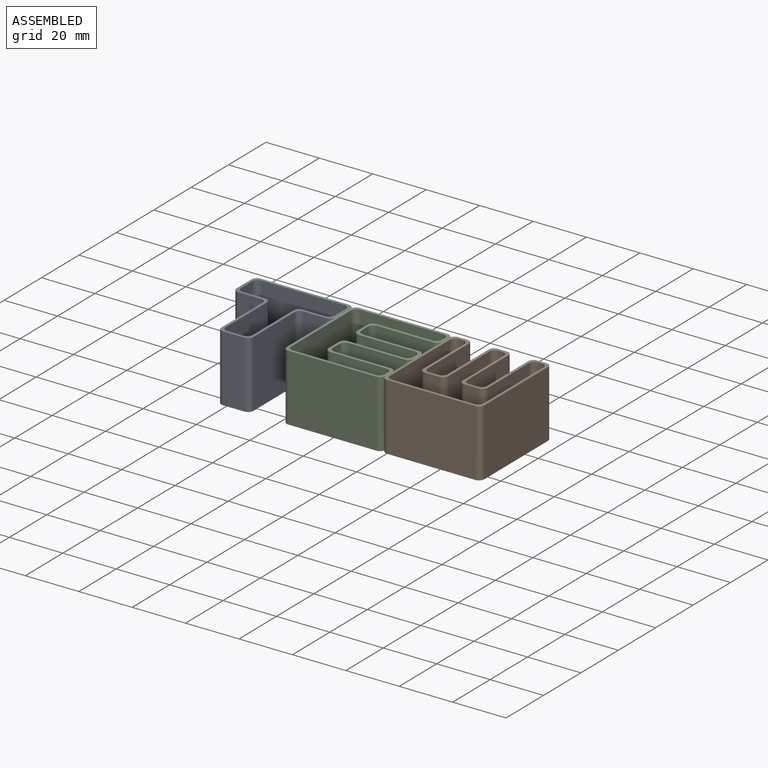
[diagram: assembled view]
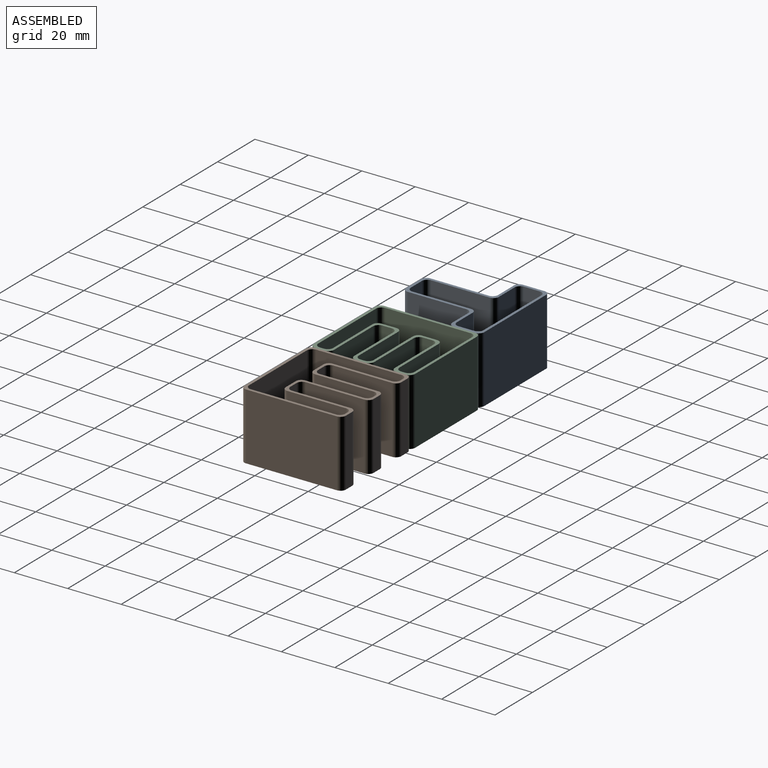
[diagram: assembled view, second angle]
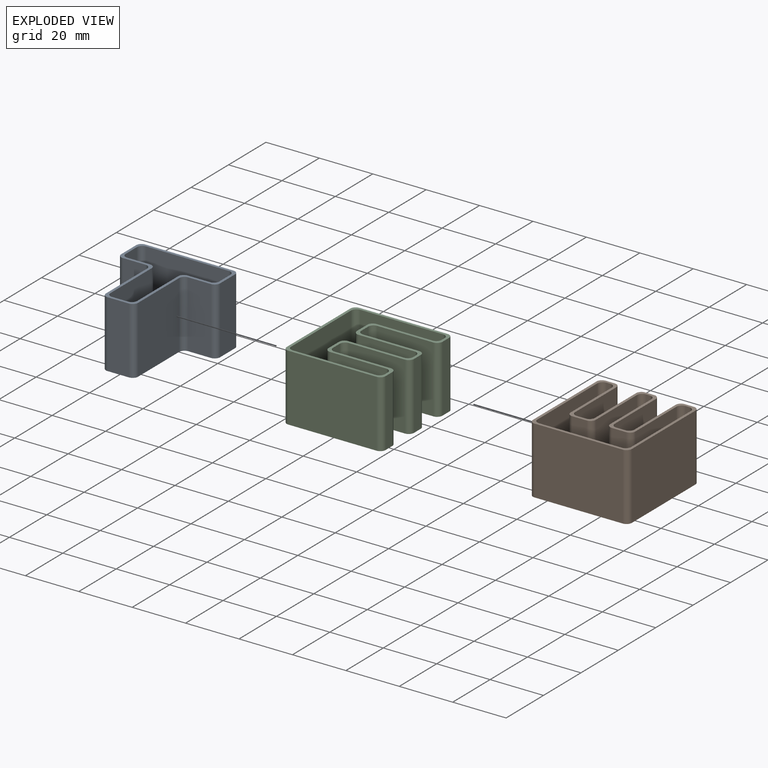
[diagram: exploded view]
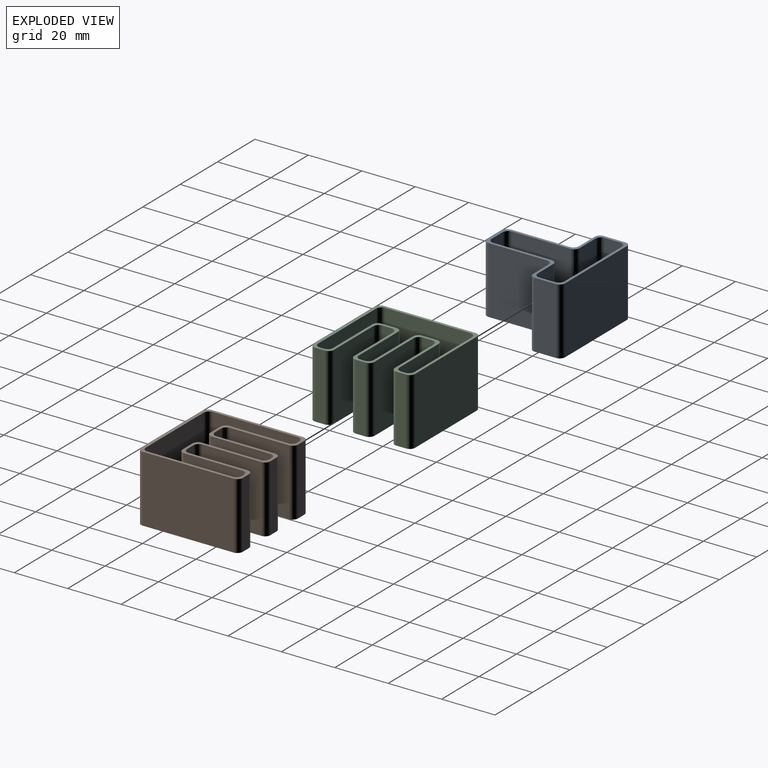
[diagram: exploded view, second angle]
ASSEMBLY  parts=3 mates=2
PART A: 34 faces, bbox 37x38x25 mm
  f0: plane 25x8.5mm, normal (0,1,0), area 212.5mm2, adj f16,f17,f29,f30
  f1: plane 25x21.98mm, normal (-1,0,0), area 549.4mm2, adj f16,f17,f18,f30
  f2: plane 25x6mm, normal (0,1,0), area 150mm2, adj f16,f17,f18,f19
  f3: plane 25x21.98mm, normal (1,0,0), area 549.4mm2, adj f16,f17,f19,f25
  f4: plane 25x8.5mm, normal (0,1,0), area 212.5mm2, adj f16,f17,f25,f26
  f5: plane 25x6.02mm, normal (1,0,0), area 150.6mm2, adj f16,f17,f26,f27
  f6: plane 31x25mm, normal (0,-1,0), area 775mm2, adj f16,f17,f27,f28
  f7: plane 25x22mm, normal (1,0,0), area 550mm2, adj f16,f17,f22,f23
  f8: plane 25x8.5mm, normal (0,-1,0), area 212.5mm2, adj f16,f17,f23,f31
  f9: plane 25x8mm, normal (1,0,0), area 200mm2, adj f16,f17,f31,f32
  f10: plane 33x25mm, normal (0,1,0), area 825mm2, adj f16,f17,f32,f33
  f11: plane 25x8mm, normal (-1,0,0), area 200mm2, adj f16,f17,f24,f33
  f12: plane 25x8.5mm, normal (0,-1,0), area 212.5mm2, adj f16,f17,f20,f24
  f13: plane 25x22mm, normal (-1,0,0), area 550mm2, adj f16,f17,f20,f21
  f14: plane 25x8mm, normal (0,-1,0), area 200mm2, adj f16,f17,f21,f22
  f15: plane 25x6.02mm, normal (-1,0,0), area 150.6mm2, adj f16,f17,f28,f29
  f16: plane 38x37mm, normal (0,0,1), area 145.4mm2, adj f0,f1,f2,f3,f4,f5,f6,f7
  f17: plane 38x37mm, normal (0,0,-1), area 145.4mm2, adj f0,f1,f2,f3,f4,f5,f6,f7
  f18: cylinder r=2mm len=25mm, axis (0,0,-1), area 78.5mm2, adj f1,f2,f16,f17
  f19: cylinder r=2mm len=25mm, axis (0,0,1), area 78.5mm2, adj f2,f3,f16,f17
  f20: cylinder r=2mm len=25mm, axis (0,0,1), area 78.5mm2, adj f12,f13,f16,f17
  f21: cylinder r=2mm len=25mm, axis (0,0,-1), area 78.5mm2, adj f13,f14,f16,f17
  f22: cylinder r=2mm len=25mm, axis (0,0,1), area 78.5mm2, adj f7,f14,f16,f17
  f23: cylinder r=2mm len=25mm, axis (0,0,-1), area 78.5mm2, adj f7,f8,f16,f17
  f24: cylinder r=2mm len=25mm, axis (0,0,-1), area 78.5mm2, adj f11,f12,f16,f17
  f25: cylinder r=2mm len=25mm, axis (0,0,-1), area 78.5mm2, adj f3,f4,f16,f17
  f26: cylinder r=2mm len=25mm, axis (0,0,1), area 78.5mm2, adj f4,f5,f16,f17
  f27: cylinder r=2mm len=25mm, axis (0,0,-1), area 78.5mm2, adj f5,f6,f16,f17
  f28: cylinder r=2mm len=25mm, axis (0,0,1), area 78.5mm2, adj f6,f15,f16,f17
  f29: cylinder r=2mm len=25mm, axis (0,0,-1), area 78.5mm2, adj f0,f15,f16,f17
  f30: cylinder r=2mm len=25mm, axis (0,0,1), area 78.5mm2, adj f0,f1,f16,f17
  f31: cylinder r=2mm len=25mm, axis (0,0,1), area 78.5mm2, adj f8,f9,f16,f17
  f32: cylinder r=2mm len=25mm, axis (0,0,-1), area 78.5mm2, adj f9,f10,f16,f17
  f33: cylinder r=2mm len=25mm, axis (0,0,1), area 78.5mm2, adj f10,f11,f16,f17
PART B: 50 faces, bbox 37x38x25 mm
  f0: plane 34x25mm, normal (-1,0,0), area 850mm2, adj f24,f25,f30,f42
  f1: plane 33x25mm, normal (0,-1,0), area 825mm2, adj f24,f25,f42,f49
  f2: plane 34x25mm, normal (1,0,0), area 850mm2, adj f24,f25,f38,f49
  f3: plane 25x3.4mm, normal (0,1,0), area 85mm2, adj f24,f25,f38,f39
  f4: plane 25x22mm, normal (-1,0,0), area 550mm2, adj f24,f25,f37,f39
  f5: plane 25x3.4mm, normal (0,1,0), area 85mm2, adj f24,f25,f34,f37
  f6: plane 25x22mm, normal (1,0,0), area 550mm2, adj f24,f25,f34,f35
  f7: plane 25x3.4mm, normal (0,1,0), area 85mm2, adj f24,f25,f35,f36
  f8: plane 25x22mm, normal (-1,0,0), area 550mm2, adj f24,f25,f31,f36
  f9: plane 25x3.4mm, normal (0,1,0), area 85mm2, adj f24,f25,f28,f31
  f10: plane 25x22mm, normal (1,0,0), area 550mm2, adj f24,f25,f28,f29
  f11: plane 31x25mm, normal (0,1,0), area 775mm2, adj f24,f25,f43,f48
  f12: plane 32x25mm, normal (1,0,0), area 800mm2, adj f24,f25,f26,f43
  f13: plane 25x1.4mm, normal (0,-1,0), area 35mm2, adj f24,f25,f26,f27
  f14: plane 25x22mm, normal (-1,0,0), area 550mm2, adj f24,f25,f27,f44
  f15: plane 25x5.4mm, normal (0,-1,0), area 135mm2, adj f24,f25,f44,f45
  f16: plane 25x22mm, normal (1,0,0), area 550mm2, adj f24,f25,f32,f45
  f17: plane 25x1.4mm, normal (0,-1,0), area 35mm2, adj f24,f25,f32,f33
  f18: plane 25x22mm, normal (-1,0,0), area 550mm2, adj f24,f25,f33,f46
  f19: plane 25x5.4mm, normal (0,-1,0), area 135mm2, adj f24,f25,f46,f47
  f20: plane 25x22mm, normal (1,0,0), area 550mm2, adj f24,f25,f40,f47
  f21: plane 25x1.4mm, normal (0,-1,0), area 35mm2, adj f24,f25,f40,f41
  f22: plane 32x25mm, normal (-1,0,0), area 800mm2, adj f24,f25,f41,f48
  f23: plane 25x3.4mm, normal (0,1,0), area 85mm2, adj f24,f25,f29,f30
  f24: plane 38x37mm, normal (0,0,1), area 250mm2, adj f0,f1,f2,f3,f4,f5,f6,f7
  f25: plane 38x37mm, normal (0,0,-1), area 250mm2, adj f0,f1,f2,f3,f4,f5,f6,f7
  f26: cylinder r=2mm len=25mm, axis (0,0,-1), area 78.5mm2, adj f12,f13,f24,f25
  f27: cylinder r=2mm len=25mm, axis (0,0,1), area 78.5mm2, adj f13,f14,f24,f25
  f28: cylinder r=2mm len=25mm, axis (0,0,1), area 78.5mm2, adj f9,f10,f24,f25
  f29: cylinder r=2mm len=25mm, axis (0,0,-1), area 78.5mm2, adj f10,f23,f24,f25
  f30: cylinder r=2mm len=25mm, axis (0,0,1), area 78.5mm2, adj f0,f23,f24,f25
  f31: cylinder r=2mm len=25mm, axis (0,0,-1), area 78.5mm2, adj f8,f9,f24,f25
  f32: cylinder r=2mm len=25mm, axis (0,0,-1), area 78.5mm2, adj f16,f17,f24,f25
  f33: cylinder r=2mm len=25mm, axis (0,0,1), area 78.5mm2, adj f17,f18,f24,f25
  f34: cylinder r=2mm len=25mm, axis (0,0,1), area 78.5mm2, adj f5,f6,f24,f25
  f35: cylinder r=2mm len=25mm, axis (0,0,-1), area 78.5mm2, adj f6,f7,f24,f25
  f36: cylinder r=2mm len=25mm, axis (0,0,1), area 78.5mm2, adj f7,f8,f24,f25
  f37: cylinder r=2mm len=25mm, axis (0,0,-1), area 78.5mm2, adj f4,f5,f24,f25
  f38: cylinder r=2mm len=25mm, axis (0,0,-1), area 78.5mm2, adj f2,f3,f24,f25
  f39: cylinder r=2mm len=25mm, axis (0,0,1), area 78.5mm2, adj f3,f4,f24,f25
  f40: cylinder r=2mm len=25mm, axis (0,0,-1), area 78.5mm2, adj f20,f21,f24,f25
  f41: cylinder r=2mm len=25mm, axis (0,0,1), area 78.5mm2, adj f21,f22,f24,f25
  f42: cylinder r=2mm len=25mm, axis (0,0,-1), area 78.5mm2, adj f0,f1,f24,f25
  f43: cylinder r=2mm len=25mm, axis (0,0,1), area 78.5mm2, adj f11,f12,f24,f25
  f44: cylinder r=2mm len=25mm, axis (0,0,-1), area 78.5mm2, adj f14,f15,f24,f25
  f45: cylinder r=2mm len=25mm, axis (0,0,1), area 78.5mm2, adj f15,f16,f24,f25
  f46: cylinder r=2mm len=25mm, axis (0,0,-1), area 78.5mm2, adj f18,f19,f24,f25
  f47: cylinder r=2mm len=25mm, axis (0,0,1), area 78.5mm2, adj f19,f20,f24,f25
  f48: cylinder r=2mm len=25mm, axis (0,0,-1), area 78.5mm2, adj f11,f22,f24,f25
  f49: cylinder r=2mm len=25mm, axis (0,0,1), area 78.5mm2, adj f1,f2,f24,f25
PART C: 50 faces, bbox 37x38x25 mm
  f0: plane 31x25mm, normal (0,1,0), area 775mm2, adj f24,f25,f30,f42
  f1: plane 32x25mm, normal (1,0,0), area 800mm2, adj f24,f25,f42,f43
  f2: plane 31x25mm, normal (0,-1,0), area 775mm2, adj f24,f25,f40,f43
  f3: plane 25x1.6mm, normal (-1,0,0), area 40mm2, adj f24,f25,f40,f41
  f4: plane 25x21mm, normal (0,1,0), area 525mm2, adj f24,f25,f41,f49
  f5: plane 25x5.6mm, normal (-1,0,0), area 140mm2, adj f24,f25,f48,f49
  f6: plane 25x21mm, normal (0,-1,0), area 525mm2, adj f24,f25,f35,f48
  f7: plane 25x1.6mm, normal (-1,0,0), area 40mm2, adj f24,f25,f35,f36
  f8: plane 25x21mm, normal (0,1,0), area 525mm2, adj f24,f25,f36,f47
  f9: plane 25x5.6mm, normal (-1,0,0), area 140mm2, adj f24,f25,f46,f47
  f10: plane 25x21mm, normal (0,-1,0), area 525mm2, adj f24,f25,f29,f46
  f11: plane 34x25mm, normal (-1,0,0), area 850mm2, adj f24,f25,f44,f45
  f12: plane 33x25mm, normal (0,-1,0), area 825mm2, adj f24,f25,f26,f45
  f13: plane 25x3.6mm, normal (1,0,0), area 90mm2, adj f24,f25,f26,f27
  f14: plane 25x21mm, normal (0,1,0), area 525mm2, adj f24,f25,f27,f28
  f15: plane 25x3.6mm, normal (1,0,0), area 90mm2, adj f24,f25,f28,f31
  f16: plane 25x21mm, normal (0,-1,0), area 525mm2, adj f24,f25,f31,f32
  f17: plane 25x3.6mm, normal (1,0,0), area 90mm2, adj f24,f25,f32,f33
  f18: plane 25x21mm, normal (0,1,0), area 525mm2, adj f24,f25,f33,f34
  f19: plane 25x3.6mm, normal (1,0,0), area 90mm2, adj f24,f25,f34,f37
  f20: plane 25x21mm, normal (0,-1,0), area 525mm2, adj f24,f25,f37,f38
  f21: plane 25x3.6mm, normal (1,0,0), area 90mm2, adj f24,f25,f38,f39
  f22: plane 33x25mm, normal (0,1,0), area 825mm2, adj f24,f25,f39,f44
  f23: plane 25x1.6mm, normal (-1,0,0), area 40mm2, adj f24,f25,f29,f30
  f24: plane 38x37mm, normal (0,0,1), area 246mm2, adj f0,f1,f2,f3,f4,f5,f6,f7
  f25: plane 38x37mm, normal (0,0,-1), area 246mm2, adj f0,f1,f2,f3,f4,f5,f6,f7
  f26: cylinder r=2mm len=25mm, axis (0,0,1), area 78.5mm2, adj f12,f13,f24,f25
  f27: cylinder r=2mm len=25mm, axis (0,0,-1), area 78.5mm2, adj f13,f14,f24,f25
  f28: cylinder r=2mm len=25mm, axis (0,0,1), area 78.5mm2, adj f14,f15,f24,f25
  f29: cylinder r=2mm len=25mm, axis (0,0,1), area 78.5mm2, adj f10,f23,f24,f25
  f30: cylinder r=2mm len=25mm, axis (0,0,-1), area 78.5mm2, adj f0,f23,f24,f25
  f31: cylinder r=2mm len=25mm, axis (0,0,-1), area 78.5mm2, adj f15,f16,f24,f25
  f32: cylinder r=2mm len=25mm, axis (0,0,1), area 78.5mm2, adj f16,f17,f24,f25
  f33: cylinder r=2mm len=25mm, axis (0,0,-1), area 78.5mm2, adj f17,f18,f24,f25
  f34: cylinder r=2mm len=25mm, axis (0,0,1), area 78.5mm2, adj f18,f19,f24,f25
  f35: cylinder r=2mm len=25mm, axis (0,0,1), area 78.5mm2, adj f6,f7,f24,f25
  f36: cylinder r=2mm len=25mm, axis (0,0,-1), area 78.5mm2, adj f7,f8,f24,f25
  f37: cylinder r=2mm len=25mm, axis (0,0,-1), area 78.5mm2, adj f19,f20,f24,f25
  f38: cylinder r=2mm len=25mm, axis (0,0,1), area 78.5mm2, adj f20,f21,f24,f25
  f39: cylinder r=2mm len=25mm, axis (0,0,-1), area 78.5mm2, adj f21,f22,f24,f25
  f40: cylinder r=2mm len=25mm, axis (0,0,1), area 78.5mm2, adj f2,f3,f24,f25
  f41: cylinder r=2mm len=25mm, axis (0,0,-1), area 78.5mm2, adj f3,f4,f24,f25
  f42: cylinder r=2mm len=25mm, axis (0,0,1), area 78.5mm2, adj f0,f1,f24,f25
  f43: cylinder r=2mm len=25mm, axis (0,0,-1), area 78.5mm2, adj f1,f2,f24,f25
  f44: cylinder r=2mm len=25mm, axis (0,0,1), area 78.5mm2, adj f11,f22,f24,f25
  f45: cylinder r=2mm len=25mm, axis (0,0,-1), area 78.5mm2, adj f11,f12,f24,f25
  f46: cylinder r=2mm len=25mm, axis (0,0,-1), area 78.5mm2, adj f9,f10,f24,f25
  f47: cylinder r=2mm len=25mm, axis (0,0,1), area 78.5mm2, adj f8,f9,f24,f25
  f48: cylinder r=2mm len=25mm, axis (0,0,-1), area 78.5mm2, adj f5,f6,f24,f25
  f49: cylinder r=2mm len=25mm, axis (0,0,1), area 78.5mm2, adj f4,f5,f24,f25
PLACE A t=(31.81,-9.45,3.74)mm
PLACE B t=(16.77,-9.56,3.74)mm
PLACE C t=(27.45,-9.62,3.74)mm
MATE parallel B.f0 <-> C.f21  axis (-1,0,0) through (20.41,28.93,16.24)mm
MATE parallel A.f9 <-> C.f11  axis (1,0,0) through (-16.59,28.93,16.24)mm
